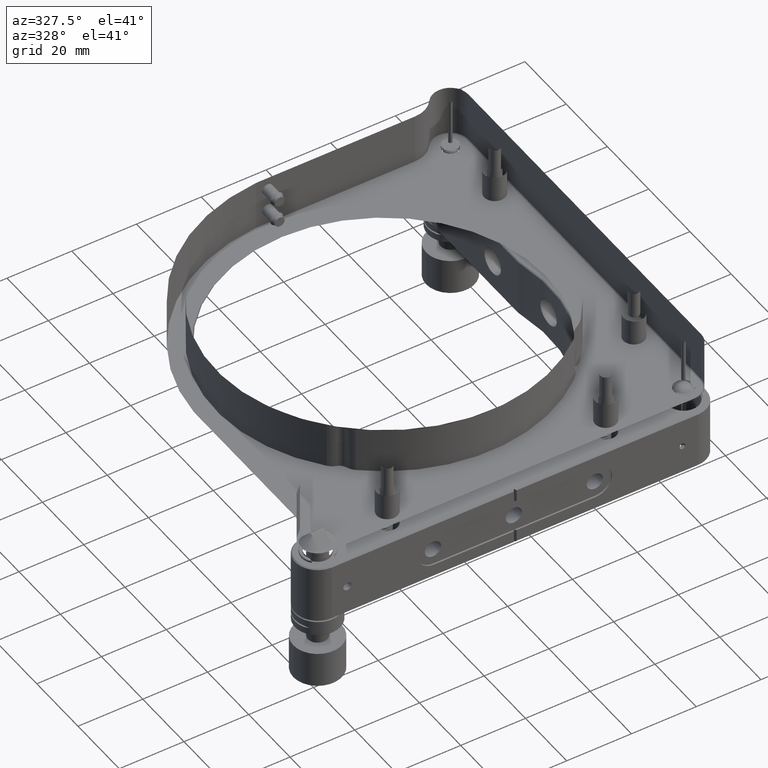
[diagram: clean part render]
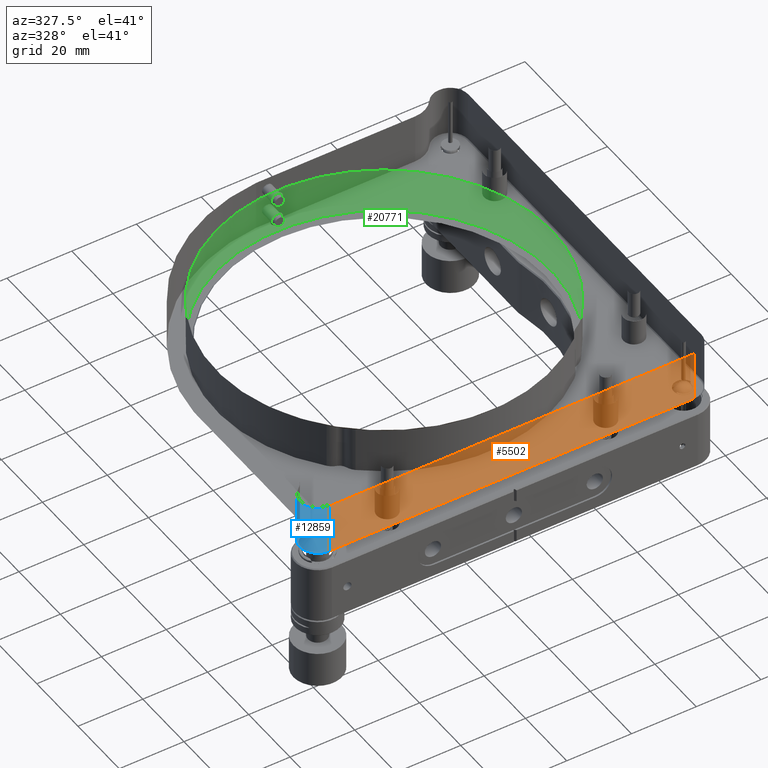
[diagram: same view with three faces highlighted in distinct colors, each labeled with its STEP entity id]
A machine part, auxiliary view with three faces highlighted in distinct colors.
Their STEP definitions:

[orange] entity #5502 — the highlighted planar face has unit normal (0, 1, 0).
#577 = EDGE_CURVE ( 'NONE', #12945, #19850, #19547, .T. ) ;
#2118 = ORIENTED_EDGE ( 'NONE', *, *, #8507, .T. ) ;
#2546 = EDGE_LOOP ( 'NONE', ( #12035, #4943, #2118, #8846 ) ) ;
#3534 = CARTESIAN_POINT ( 'NONE',  ( 56.50000000000004974, -61.99999999999996447, 28.99528137423851959 ) ) ;
#4715 = EDGE_CURVE ( 'NONE', #12945, #7419, #16541, .T. ) ;
#4943 = ORIENTED_EDGE ( 'NONE', *, *, #4715, .T. ) ;
#5502 = ADVANCED_FACE ( 'NONE', ( #20330 ), #6491, .T. ) ;
#5518 = VECTOR ( 'NONE', #19340, 1000.000000000000000 ) ;
#5928 = DIRECTION ( 'NONE',  ( 0.000000000000000000, -0.000000000000000000, 1.000000000000000000 ) ) ;
#6035 = CARTESIAN_POINT ( 'NONE',  ( -56.49999999999994316, -61.99999999999995737, 28.99528137423851959 ) ) ;
#6491 = PLANE ( 'NONE',  #20452 ) ;
#6598 = CARTESIAN_POINT ( 'NONE',  ( -56.49999999999995026, -61.99999999999995737, 28.74528137423853380 ) ) ;
#6663 = LINE ( 'NONE', #3534, #21969 ) ;
#7419 = VERTEX_POINT ( 'NONE', #6598 ) ;
#7514 = CARTESIAN_POINT ( 'NONE',  ( 56.50000000000004974, -61.99999999997451283, 28.74528137424293206 ) ) ;
#7955 = DIRECTION ( 'NONE',  ( -1.000000000000000000, 6.086749038515108114E-17, 0.000000000000000000 ) ) ;
#8507 = EDGE_CURVE ( 'NONE', #7419, #15035, #8747, .T. ) ;
#8747 = LINE ( 'NONE', #15576, #5518 ) ;
#8846 = ORIENTED_EDGE ( 'NONE', *, *, #12058, .T. ) ;
#11063 = CARTESIAN_POINT ( 'NONE',  ( -61.99999999999994316, -61.99999999999996447, 13.24528137423852314 ) ) ;
#11807 = DIRECTION ( 'NONE',  ( 0.000000000000000000, 0.000000000000000000, -1.000000000000000000 ) ) ;
#12035 = ORIENTED_EDGE ( 'NONE', *, *, #577, .F. ) ;
#12058 = EDGE_CURVE ( 'NONE', #15035, #19850, #6663, .T. ) ;
#12945 = VERTEX_POINT ( 'NONE', #20371 ) ;
#14009 = VECTOR ( 'NONE', #14422, 1000.000000000000000 ) ;
#14422 = DIRECTION ( 'NONE',  ( 1.000000000000000000, -3.043374519257553441E-17, -3.043374519257553441E-17 ) ) ;
#15035 = VERTEX_POINT ( 'NONE', #7514 ) ;
#15576 = CARTESIAN_POINT ( 'NONE',  ( -61.99999999999994316, -61.99999999999995737, 28.74528137423853380 ) ) ;
#16541 = LINE ( 'NONE', #6035, #19719 ) ;
#16884 = CARTESIAN_POINT ( 'NONE',  ( -61.99999999999994316, -61.99999999999995737, 28.99528137423851959 ) ) ;
#17144 = CARTESIAN_POINT ( 'NONE',  ( 56.50000000000007816, -62.00000000000599698, 13.24528137418556817 ) ) ;
#18340 = DIRECTION ( 'NONE',  ( 6.086749038515108114E-17, 1.000000000000000000, 0.000000000000000000 ) ) ;
#19340 = DIRECTION ( 'NONE',  ( 1.000000000000000000, -6.086749038515108114E-17, -0.000000000000000000 ) ) ;
#19547 = LINE ( 'NONE', #11063, #14009 ) ;
#19719 = VECTOR ( 'NONE', #5928, 1000.000000000000000 ) ;
#19850 = VERTEX_POINT ( 'NONE', #17144 ) ;
#20330 = FACE_OUTER_BOUND ( 'NONE', #2546, .T. ) ;
#20371 = CARTESIAN_POINT ( 'NONE',  ( -56.49999999999994316, -62.00000000000302691, 13.24528137422087326 ) ) ;
#20452 = AXIS2_PLACEMENT_3D ( 'NONE', #16884, #18340, #7955 ) ;
#21969 = VECTOR ( 'NONE', #11807, 1000.000000000000000 ) ;

[blue] entity #12859 — the highlighted cylindrical surface (edge-blend (fillet) strip) has radius 5.5 mm, axis along (0, 0, -1).
#497 = DIRECTION ( 'NONE',  ( -1.000000000000000000, 0.000000000000000000, 0.000000000000000000 ) ) ;
#1080 = CYLINDRICAL_SURFACE ( 'NONE', #3467, 5.499999999999998224 ) ;
#1513 = VERTEX_POINT ( 'NONE', #18717 ) ;
#1634 = ORIENTED_EDGE ( 'NONE', *, *, #21869, .F. ) ;
#2070 = DIRECTION ( 'NONE',  ( 0.000000000000000000, 0.000000000000000000, -1.000000000000000000 ) ) ;
#3467 = AXIS2_PLACEMENT_3D ( 'NONE', #21368, #19715, #6090 ) ;
#4136 = ORIENTED_EDGE ( 'NONE', *, *, #13081, .F. ) ;
#4715 = EDGE_CURVE ( 'NONE', #12945, #7419, #16541, .T. ) ;
#4745 = CARTESIAN_POINT ( 'NONE',  ( -56.49999999999993605, -56.49999999999996447, 13.24528137416791651 ) ) ;
#5354 = EDGE_CURVE ( 'NONE', #12945, #1513, #13692, .T. ) ;
#5928 = DIRECTION ( 'NONE',  ( 0.000000000000000000, -0.000000000000000000, 1.000000000000000000 ) ) ;
#6035 = CARTESIAN_POINT ( 'NONE',  ( -56.49999999999994316, -61.99999999999995737, 28.99528137423851959 ) ) ;
#6090 = DIRECTION ( 'NONE',  ( -1.000000000000000000, 0.000000000000000000, 0.000000000000000000 ) ) ;
#6193 = DIRECTION ( 'NONE',  ( -0.000000000000000000, -0.000000000000000000, -1.000000000000000000 ) ) ;
#6598 = CARTESIAN_POINT ( 'NONE',  ( -56.49999999999995026, -61.99999999999995737, 28.74528137423853380 ) ) ;
#7419 = VERTEX_POINT ( 'NONE', #6598 ) ;
#7881 = FACE_OUTER_BOUND ( 'NONE', #22013, .T. ) ;
#8612 = ORIENTED_EDGE ( 'NONE', *, *, #5354, .T. ) ;
#10004 = DIRECTION ( 'NONE',  ( 0.000000000000000000, 1.000000000000000000, 0.000000000000000000 ) ) ;
#10204 = VERTEX_POINT ( 'NONE', #12702 ) ;
#10955 = CIRCLE ( 'NONE', #20917, 5.499999999999998224 ) ;
#11435 = DIRECTION ( 'NONE',  ( 0.000000000000000000, 0.000000000000000000, -1.000000000000000000 ) ) ;
#12702 = CARTESIAN_POINT ( 'NONE',  ( -59.75925925925384519, -52.06973713184308394, 28.74528137425714291 ) ) ;
#12859 = ADVANCED_FACE ( 'NONE', ( #7881 ), #1080, .F. ) ;
#12945 = VERTEX_POINT ( 'NONE', #20371 ) ;
#13081 = EDGE_CURVE ( 'NONE', #7419, #10204, #10955, .T. ) ;
#13692 = CIRCLE ( 'NONE', #16171, 5.500000000012245316 ) ;
#14803 = LINE ( 'NONE', #16995, #18564 ) ;
#15801 = CARTESIAN_POINT ( 'NONE',  ( -56.49999999999993605, -56.49999999999996447, 28.74528137423853380 ) ) ;
#16171 = AXIS2_PLACEMENT_3D ( 'NONE', #4745, #6193, #10004 ) ;
#16541 = LINE ( 'NONE', #6035, #19719 ) ;
#16995 = CARTESIAN_POINT ( 'NONE',  ( -59.75925925925920268, -52.06973713184724772, 28.99528137423851959 ) ) ;
#17899 = ORIENTED_EDGE ( 'NONE', *, *, #4715, .F. ) ;
#18564 = VECTOR ( 'NONE', #11435, 1000.000000000000000 ) ;
#18717 = CARTESIAN_POINT ( 'NONE',  ( -59.75925925924449444, -52.06973713188550335, 13.24528137418900720 ) ) ;
#19715 = DIRECTION ( 'NONE',  ( 0.000000000000000000, 0.000000000000000000, -1.000000000000000000 ) ) ;
#19719 = VECTOR ( 'NONE', #5928, 1000.000000000000000 ) ;
#20371 = CARTESIAN_POINT ( 'NONE',  ( -56.49999999999994316, -62.00000000000302691, 13.24528137422087326 ) ) ;
#20917 = AXIS2_PLACEMENT_3D ( 'NONE', #15801, #2070, #497 ) ;
#21368 = CARTESIAN_POINT ( 'NONE',  ( -56.49999999999993605, -56.49999999999996447, 28.99528137423851959 ) ) ;
#21869 = EDGE_CURVE ( 'NONE', #10204, #1513, #14803, .T. ) ;
#22013 = EDGE_LOOP ( 'NONE', ( #17899, #8612, #1634, #4136 ) ) ;

[green] entity #20771 — the highlighted cylindrical surface (partial cylindrical patch) has radius 51.8 mm, axis along (0, 0, 1).
#135 = FACE_OUTER_BOUND ( 'NONE', #5286, .T. ) ;
#148 = CARTESIAN_POINT ( 'NONE',  ( 0.4270532416753768934, 51.79834690574876532, 26.59267950004793590 ) ) ;
#217 = DIRECTION ( 'NONE',  ( -0.000000000000000000, -0.000000000000000000, -1.000000000000000000 ) ) ;
#256 = CARTESIAN_POINT ( 'NONE',  ( -0.8285465665919958811, 51.79345025189974905, 26.42621132850410959 ) ) ;
#368 = CARTESIAN_POINT ( 'NONE',  ( 8.089503459457469958E-14, 51.80000000000002558, 23.34528137423853167 ) ) ;
#455 = DIRECTION ( 'NONE',  ( 0.000000000000000000, 0.000000000000000000, 1.000000000000000000 ) ) ;
#576 = CARTESIAN_POINT ( 'NONE',  ( 0.4323199734079827272, 51.79858171080597629, 23.38828480740045279 ) ) ;
#778 = DIRECTION ( 'NONE',  ( 1.000000000000000000, 0.000000000000000000, 0.000000000000000000 ) ) ;
#904 = CARTESIAN_POINT ( 'NONE',  ( 1.566212797684664038, 51.77633322670951088, 24.46503850735648911 ) ) ;
#1094 = CARTESIAN_POINT ( 'NONE',  ( -1.312660736464374978, 51.78339972070894248, 19.00075592220325049 ) ) ;
#1157 = VERTEX_POINT ( 'NONE', #12605 ) ;
#1206 = CARTESIAN_POINT ( 'NONE',  ( -1.483666877931220984, 51.77876434918251647, 18.72529002339280879 ) ) ;
#1321 = CARTESIAN_POINT ( 'NONE',  ( 0.7316316666765588783, 51.79492925647194568, 19.47815339891709030 ) ) ;
#1430 = CARTESIAN_POINT ( 'NONE',  ( 8.094924470319897480E-14, 51.80000000000001137, 16.34528137423852456 ) ) ;
#1598 = CARTESIAN_POINT ( 'NONE',  ( -1.597333614466559082, 51.77537028162564781, 25.42267164003677493 ) ) ;
#1821 = CARTESIAN_POINT ( 'NONE',  ( -1.566212750141531940, 51.77633322816650008, 25.52552438815226310 ) ) ;
#1863 = CARTESIAN_POINT ( 'NONE',  ( 1.007162742744400319, 51.79028481878594903, 16.68391828574290869 ) ) ;
#2043 = CARTESIAN_POINT ( 'NONE',  ( 0.2161863550557907576, 51.79965617742464445, 26.63458570945284976 ) ) ;
#2146 = CARTESIAN_POINT ( 'NONE',  ( 1.244514433334045211, 51.78510506429091720, 23.90645611148425331 ) ) ;
#2478 = B_SPLINE_CURVE_WITH_KNOTS ( 'NONE', 3,
 ( #1430, #8125, #15053, #19618, #4545, #13262, #14946, #11248, #18064, #11579, #13155, #11466, #21605, #21382, #12920, #16385, #6212, #1206, #2987, #1094, #6102, #19729, #2761, #18389, #11132, #9908, #3092, #21825, #6331, #19952, #4657, #1321, #20055, #18175, #7894, #8232, #6546, #14718, #8010, #13035, #11356, #4322, #2875, #9686, #14837, #9799, #16610, #17951, #1863, #8775, #13370, #13591, #15496, #8667 ),
 .UNSPECIFIED., .T., .F.,
 ( 4, 2, 2, 2, 2, 2, 2, 2, 2, 2, 2, 2, 2, 2, 2, 2, 2, 2, 2, 2, 2, 2, 2, 2, 2, 2, 4 ),
 ( 0.000000000000000000, 0.0003223695891700952823, 0.0006447391783401905645, 0.0009671087675102858468, 0.001289478356680381129, 0.001934217535020572344, 0.002578956713360763559, 0.002901326302530864588, 0.003223695891700965616, 0.003546065480871066645, 0.003868435070041167673, 0.004190804659211268268, 0.004513174248381369297, 0.005157913426721567017, 0.005480283015891665443, 0.005802652605061764737, 0.006125022194231863164, 0.006447391783401962458, 0.007092130961742159311, 0.007736870140082357031, 0.008059239729252451120, 0.008381609318422545210, 0.008703978907592639300, 0.009026348496762733389, 0.009348718085932827479, 0.009671087675102921569, 0.01031582685344310454 ),
 .UNSPECIFIED. ) ;
#2761 = CARTESIAN_POINT ( 'NONE',  ( -1.007162400624017629, 51.79028482551328949, 19.30664472807875853 ) ) ;
#2875 = CARTESIAN_POINT ( 'NONE',  ( 1.566212797684663371, 51.77633322670948957, 17.46503850735648200 ) ) ;
#2987 = CARTESIAN_POINT ( 'NONE',  ( -1.432031447298610205, 51.78023610198898297, 18.82192713247351179 ) ) ;
#3092 = CARTESIAN_POINT ( 'NONE',  ( -0.2180083631620857443, 51.80000000000007532, 19.64528137423851817 ) ) ;
#3259 = CARTESIAN_POINT ( 'NONE',  ( 0.5318308255261325890, 51.79736612562106757, 26.56096023986786747 ) ) ;
#3373 = CARTESIAN_POINT ( 'NONE',  ( -0.8263936647723697515, 51.79348527612400233, 23.56308115462836383 ) ) ;
#3488 = CARTESIAN_POINT ( 'NONE',  ( -1.090635142081415987, 51.78857439327549628, 26.23821002148700998 ) ) ;
#3586 = CYLINDRICAL_SURFACE ( 'NONE', #18911, 51.79999999999999005 ) ;
#3598 = CARTESIAN_POINT ( 'NONE',  ( -1.483666877931220984, 51.77876434918252357, 25.72529002339280524 ) ) ;
#3704 = CARTESIAN_POINT ( 'NONE',  ( -1.007162400624018295, 51.79028482551333212, 26.30664472807876919 ) ) ;
#3751 = LINE ( 'NONE', #21038, #9879 ) ;
#3922 = CARTESIAN_POINT ( 'NONE',  ( 1.597333644506853112, 51.77537028069403391, 24.56789122840461914 ) ) ;
#4322 = CARTESIAN_POINT ( 'NONE',  ( 1.597333644506852668, 51.77537028069402680, 17.56789122840462625 ) ) ;
#4545 = CARTESIAN_POINT ( 'NONE',  ( -0.5318302619160883982, 51.79736613149785285, 16.42960231472630994 ) ) ;
#4603 = VERTEX_POINT ( 'NONE', #19451 ) ;
#4657 = CARTESIAN_POINT ( 'NONE',  ( 0.5318308255261322559, 51.79736612562106046, 19.56096023986786392 ) ) ;
#5162 = CARTESIAN_POINT ( 'NONE',  ( -1.650072670451273593, 51.77371205725521719, 25.10176363823922330 ) ) ;
#5173 = AXIS2_PLACEMENT_3D ( 'NONE', #9258, #16077, #778 ) ;
#5286 = EDGE_LOOP ( 'NONE', ( #15995, #14391, #15091, #19961 ) ) ;
#5387 = CARTESIAN_POINT ( 'NONE',  ( -1.441879731126964659, 51.77999384854361864, 24.16482119754056157 ) ) ;
#5923 = CARTESIAN_POINT ( 'NONE',  ( 1.483666972781778615, 51.77876434644579717, 24.26527292265247482 ) ) ;
#6102 = CARTESIAN_POINT ( 'NONE',  ( -1.244514210433852019, 51.78510506971094429, 19.08410689530336057 ) ) ;
#6212 = CARTESIAN_POINT ( 'NONE',  ( -1.566212750141532606, 51.77633322816652139, 18.52552438815225599 ) ) ;
#6252 = VERTEX_POINT ( 'NONE', #12783 ) ;
#6331 = CARTESIAN_POINT ( 'NONE',  ( 0.2161863550557916458, 51.79965617742463735, 19.63458570945285686 ) ) ;
#6416 = DIRECTION ( 'NONE',  ( -0.000000000000000000, -0.000000000000000000, -1.000000000000000000 ) ) ;
#6546 = CARTESIAN_POINT ( 'NONE',  ( 1.441879848103171380, 51.77999384521309878, 18.82574133183396370 ) ) ;
#6835 = CARTESIAN_POINT ( 'NONE',  ( -1.606491322959578083, 51.77514814796286657, 24.56184522741693499 ) ) ;
#6952 = CARTESIAN_POINT ( 'NONE',  ( 0.7316316666765574350, 51.79492925647194568, 26.47815339891709741 ) ) ;
#6995 = CARTESIAN_POINT ( 'NONE',  ( 8.111674747780438969E-14, 51.80000000000002558, 23.34528137423852456 ) ) ;
#7169 = CARTESIAN_POINT ( 'NONE',  ( 1.318945980354397918, 51.78342937396011791, 26.00978228966589967 ) ) ;
#7843 = EDGE_CURVE ( 'NONE', #21870, #6252, #8027, .T. ) ;
#7894 = CARTESIAN_POINT ( 'NONE',  ( 1.090647808960368170, 51.78857288450382867, 19.23808868369323122 ) ) ;
#8010 = CARTESIAN_POINT ( 'NONE',  ( 1.649853518418210596, 51.77371904150917459, 18.21160636678854061 ) ) ;
#8027 = CIRCLE ( 'NONE', #5173, 51.79999999999999005 ) ;
#8125 = CARTESIAN_POINT ( 'NONE',  ( -0.1090042129200796406, 51.80000000000001137, 16.34528137423852101 ) ) ;
#8232 = CARTESIAN_POINT ( 'NONE',  ( 1.318945980354398806, 51.78342937396013212, 19.00978228966591033 ) ) ;
#8478 = CARTESIAN_POINT ( 'NONE',  ( 6.418476861114183725E-14, 3.361026734705063745E-14, 27.99528137423851248 ) ) ;
#8625 = CARTESIAN_POINT ( 'NONE',  ( -0.5318302619160887312, 51.79736613149785995, 23.42960231472630994 ) ) ;
#8667 = CARTESIAN_POINT ( 'NONE',  ( 8.094924470319897480E-14, 51.80000000000001137, 16.34528137423852456 ) ) ;
#8775 = CARTESIAN_POINT ( 'NONE',  ( 0.8285469947618419040, 51.79345024497607142, 16.56435167026551625 ) ) ;
#8797 = ORIENTED_EDGE ( 'NONE', *, *, #15805, .F. ) ;
#8839 = CARTESIAN_POINT ( 'NONE',  ( -0.4323193786120368420, 51.79858171606942818, 26.60227810829201900 ) ) ;
#8895 = EDGE_LOOP ( 'NONE', ( #8797 ) ) ;
#9258 = CARTESIAN_POINT ( 'NONE',  ( 6.418476861114183725E-14, 3.361026734705063745E-14, 13.99528137423852669 ) ) ;
#9677 = EDGE_CURVE ( 'NONE', #18460, #1157, #19816, .T. ) ;
#9686 = CARTESIAN_POINT ( 'NONE',  ( 1.483666972781779503, 51.77876434644580428, 17.26527292265247837 ) ) ;
#9799 = CARTESIAN_POINT ( 'NONE',  ( 1.312660922802074026, 51.78339971594868985, 16.98980707278033364 ) ) ;
#9879 = VECTOR ( 'NONE', #20721, 1000.000000000000000 ) ;
#9908 = CARTESIAN_POINT ( 'NONE',  ( -0.4323193786120372306, 51.79858171606944239, 19.60227810829202255 ) ) ;
#10081 = CARTESIAN_POINT ( 'NONE',  ( 1.090647808960367726, 51.78857288450380736, 26.23808868369322056 ) ) ;
#10192 = CARTESIAN_POINT ( 'NONE',  ( -1.318945797796663433, 51.78342937884509212, 23.98078020774538288 ) ) ;
#10630 = CARTESIAN_POINT ( 'NONE',  ( 0.2180084258403997277, 51.80000000000001847, 23.34528137423854233 ) ) ;
#10843 = CARTESIAN_POINT ( 'NONE',  ( 1.650072670430444033, 51.77371205725589931, 24.88879914117398684 ) ) ;
#10953 = EDGE_LOOP ( 'NONE', ( #12750 ) ) ;
#10954 = CARTESIAN_POINT ( 'NONE',  ( 1.007162742744399653, 51.79028481878591350, 23.68391828574291580 ) ) ;
#11132 = CARTESIAN_POINT ( 'NONE',  ( -0.7321764232669889516, 51.79492165884195742, 19.47788965774003955 ) ) ;
#11226 = CARTESIAN_POINT ( 'NONE',  ( -39.26746954750443308, -33.78321825012833557, -133.5172436876140978 ) ) ;
#11248 = CARTESIAN_POINT ( 'NONE',  ( -1.005737152545551849, 51.79031315137260094, 16.68279642643270222 ) ) ;
#11356 = CARTESIAN_POINT ( 'NONE',  ( 1.639383279428564988, 51.77405590581036421, 17.77950470321147591 ) ) ;
#11466 = CARTESIAN_POINT ( 'NONE',  ( -1.606491322959578083, 51.77514814796286657, 17.56184522741693144 ) ) ;
#11579 = CARTESIAN_POINT ( 'NONE',  ( -1.318945797796662323, 51.78342937884508501, 16.98078020774537578 ) ) ;
#12092 = CARTESIAN_POINT ( 'NONE',  ( 1.649853518418212373, 51.77371904150925275, 25.21160636678855838 ) ) ;
#12196 = CARTESIAN_POINT ( 'NONE',  ( -1.639383273200234470, 51.77405590601239993, 25.21105810782020740 ) ) ;
#12233 = EDGE_CURVE ( 'NONE', #1157, #21870, #3751, .T. ) ;
#12300 = CARTESIAN_POINT ( 'NONE',  ( -0.2180083631620979567, 51.80000000000003979, 26.64528137423851462 ) ) ;
#12371 = DIRECTION ( 'NONE',  ( 1.000000000000000000, 0.000000000000000000, 0.000000000000000000 ) ) ;
#12605 = CARTESIAN_POINT ( 'NONE',  ( 39.26746954750453966, -33.78321825012834978, 27.99528137423851604 ) ) ;
#12750 = ORIENTED_EDGE ( 'NONE', *, *, #17644, .F. ) ;
#12783 = CARTESIAN_POINT ( 'NONE',  ( -39.26746954750443308, -33.78321825012833557, 13.99528137423852669 ) ) ;
#12920 = CARTESIAN_POINT ( 'NONE',  ( -1.639383273200234692, 51.77405590601243546, 18.21105810782021450 ) ) ;
#13035 = CARTESIAN_POINT ( 'NONE',  ( 1.650072670430444699, 51.77371205725588510, 17.88879914117399039 ) ) ;
#13066 = VECTOR ( 'NONE', #6416, 1000.000000000000000 ) ;
#13155 = CARTESIAN_POINT ( 'NONE',  ( -1.441879731126964437, 51.77999384854359022, 17.16482119754055446 ) ) ;
#13262 = CARTESIAN_POINT ( 'NONE',  ( -0.7316311963046294720, 51.79492926320609314, 16.51240911491250074 ) ) ;
#13370 = CARTESIAN_POINT ( 'NONE',  ( 0.7321769017585567640, 51.79492165200316833, 16.51267332898834184 ) ) ;
#13591 = CARTESIAN_POINT ( 'NONE',  ( 0.4323199734079832268, 51.79858171080597629, 16.38828480740044569 ) ) ;
#13642 = CARTESIAN_POINT ( 'NONE',  ( 6.418476861114183725E-14, 3.361026734705063745E-14, -133.5172436876140978 ) ) ;
#13655 = CARTESIAN_POINT ( 'NONE',  ( -1.649853518376055206, 51.77371904151055304, 24.77895631981650126 ) ) ;
#13770 = CARTESIAN_POINT ( 'NONE',  ( 1.005737498701338772, 51.79031314458023871, 26.30776605445067773 ) ) ;
#14100 = EDGE_CURVE ( 'NONE', #18460, #6252, #21690, .T. ) ;
#14308 = CARTESIAN_POINT ( 'NONE',  ( 0.8285469947618402387, 51.79345024497606431, 23.56435167026550914 ) ) ;
#14391 = ORIENTED_EDGE ( 'NONE', *, *, #12233, .T. ) ;
#14718 = CARTESIAN_POINT ( 'NONE',  ( 1.606491347962764271, 51.77514814711393143, 18.42871739772555628 ) ) ;
#14837 = CARTESIAN_POINT ( 'NONE',  ( 1.432031569836651475, 51.78023609856326459, 17.16863583222209755 ) ) ;
#14946 = CARTESIAN_POINT ( 'NONE',  ( -0.8263936647723699735, 51.79348527612398101, 16.56308115462837449 ) ) ;
#15053 = CARTESIAN_POINT ( 'NONE',  ( -0.2161856810756386527, 51.79965618031364727, 16.35597694819131220 ) ) ;
#15091 = ORIENTED_EDGE ( 'NONE', *, *, #7843, .T. ) ;
#15338 = CARTESIAN_POINT ( 'NONE',  ( -1.005737152545551627, 51.79031315137259384, 23.68279642643268801 ) ) ;
#15450 = CARTESIAN_POINT ( 'NONE',  ( 0.1090041815811500642, 51.80000000000003268, 26.64528137423850751 ) ) ;
#15496 = CARTESIAN_POINT ( 'NONE',  ( 0.2180084258403998387, 51.80000000000000426, 16.34528137423853167 ) ) ;
#15497 = VERTEX_POINT ( 'NONE', #6995 ) ;
#15562 = CARTESIAN_POINT ( 'NONE',  ( -1.244514210433852686, 51.78510506971094429, 26.08410689530336413 ) ) ;
#15567 = AXIS2_PLACEMENT_3D ( 'NONE', #8478, #217, #12371 ) ;
#15667 = CARTESIAN_POINT ( 'NONE',  ( 0.8263940920445065341, 51.79348526923642027, 26.42748134516420677 ) ) ;
#15760 = DIRECTION ( 'NONE',  ( 1.000000000000000000, 0.000000000000000000, 0.000000000000000000 ) ) ;
#15805 = EDGE_CURVE ( 'NONE', #15497, #15497, #18922, .T. ) ;
#15986 = CARTESIAN_POINT ( 'NONE',  ( 1.312660922802074026, 51.78339971594868274, 23.98980707278032654 ) ) ;
#15995 = ORIENTED_EDGE ( 'NONE', *, *, #9677, .T. ) ;
#16077 = DIRECTION ( 'NONE',  ( 0.000000000000000000, 0.000000000000000000, 1.000000000000000000 ) ) ;
#16385 = CARTESIAN_POINT ( 'NONE',  ( -1.597333614466558194, 51.77537028162565491, 18.42267164003678204 ) ) ;
#16610 = CARTESIAN_POINT ( 'NONE',  ( 1.244514433334048098, 51.78510506429089588, 16.90645611148424621 ) ) ;
#16891 = CARTESIAN_POINT ( 'NONE',  ( 1.441879848103171602, 51.77999384521310589, 25.82574133183397080 ) ) ;
#17103 = FACE_BOUND ( 'NONE', #10953, .T. ) ;
#17117 = CARTESIAN_POINT ( 'NONE',  ( -0.7321764232669879524, 51.79492165884195742, 26.47788965774004666 ) ) ;
#17224 = CARTESIAN_POINT ( 'NONE',  ( -0.2161856810756388747, 51.79965618031365437, 23.35597694819132286 ) ) ;
#17535 = FACE_BOUND ( 'NONE', #8895, .T. ) ;
#17546 = CARTESIAN_POINT ( 'NONE',  ( 1.432031569836652585, 51.78023609856327880, 24.16863583222210465 ) ) ;
#17644 = EDGE_CURVE ( 'NONE', #4603, #4603, #2478, .T. ) ;
#17768 = CARTESIAN_POINT ( 'NONE',  ( 8.089503459457469958E-14, 51.80000000000002558, 23.34528137423853167 ) ) ;
#17951 = CARTESIAN_POINT ( 'NONE',  ( 1.090635450070636780, 51.78857438672620361, 16.75235300034165675 ) ) ;
#18064 = CARTESIAN_POINT ( 'NONE',  ( -1.090647506419987867, 51.78857289093399885, 16.75247379648359214 ) ) ;
#18175 = CARTESIAN_POINT ( 'NONE',  ( 1.005737498701340993, 51.79031314458022450, 19.30776605445066707 ) ) ;
#18389 = CARTESIAN_POINT ( 'NONE',  ( -0.8285465665919956590, 51.79345025189974194, 19.42621132850410248 ) ) ;
#18460 = VERTEX_POINT ( 'NONE', #19837 ) ;
#18791 = CARTESIAN_POINT ( 'NONE',  ( -1.312660736464375866, 51.78339972070894959, 26.00075592220325049 ) ) ;
#18911 = AXIS2_PLACEMENT_3D ( 'NONE', #13642, #455, #15760 ) ;
#18922 = B_SPLINE_CURVE_WITH_KNOTS ( 'NONE', 3,
 ( #368, #20451, #17224, #20336, #8625, #20779, #3373, #15338, #20674, #10192, #5387, #6835, #13655, #5162, #12196, #1598, #1821, #3598, #19008, #18791, #15562, #3488, #3704, #256, #17117, #8839, #12300, #15450, #2043, #148, #3259, #6952, #15667, #13770, #10081, #7169, #16891, #20567, #12092, #10843, #21309, #3922, #904, #5923, #17546, #15986, #2146, #20989, #10954, #14308, #21201, #576, #10630, #17768 ),
 .UNSPECIFIED., .T., .F.,
 ( 4, 2, 2, 2, 2, 2, 2, 2, 2, 2, 2, 2, 2, 2, 2, 2, 2, 2, 2, 2, 2, 2, 2, 2, 2, 2, 4 ),
 ( 0.000000000000000000, 0.0003223695891700954991, 0.0006447391783401909982, 0.0009671087675102864973, 0.001289478356680381996, 0.001934217535020573428, 0.002578956713360765294, 0.002901326302530866322, 0.003223695891700967785, 0.003546065480871068813, 0.003868435070041169842, 0.004190804659211271738, 0.004513174248381372766, 0.005157913426721570486, 0.005480283015891669780, 0.005802652605061768207, 0.006125022194231867501, 0.006447391783401966794, 0.007092130961742164515, 0.007736870140082361368, 0.008059239729252454590, 0.008381609318422548680, 0.008703978907592642769, 0.009026348496762735124, 0.009348718085932829214, 0.009671087675102921569, 0.01031582685344310454 ),
 .UNSPECIFIED. ) ;
#19008 = CARTESIAN_POINT ( 'NONE',  ( -1.432031447298610205, 51.78023610198899718, 25.82192713247351179 ) ) ;
#19451 = CARTESIAN_POINT ( 'NONE',  ( 8.111674747780438969E-14, 51.80000000000002558, 16.34528137423852456 ) ) ;
#19618 = CARTESIAN_POINT ( 'NONE',  ( -0.4270526425312790031, 51.79834691076459308, 16.39788308625047719 ) ) ;
#19729 = CARTESIAN_POINT ( 'NONE',  ( -1.090635142081416653, 51.78857439327550338, 19.23821002148702064 ) ) ;
#19816 = CIRCLE ( 'NONE', #15567, 51.79999999999999005 ) ;
#19837 = CARTESIAN_POINT ( 'NONE',  ( -39.26746954750443308, -33.78321825012833557, 27.99528137423851959 ) ) ;
#19952 = CARTESIAN_POINT ( 'NONE',  ( 0.4270532416753768379, 51.79834690574877243, 19.59267950004793946 ) ) ;
#19961 = ORIENTED_EDGE ( 'NONE', *, *, #14100, .F. ) ;
#20055 = CARTESIAN_POINT ( 'NONE',  ( 0.8263940920445094207, 51.79348526923640605, 19.42748134516420322 ) ) ;
#20336 = CARTESIAN_POINT ( 'NONE',  ( -0.4270526425312791696, 51.79834691076460729, 23.39788308625048074 ) ) ;
#20451 = CARTESIAN_POINT ( 'NONE',  ( -0.1090042129200796822, 51.80000000000003979, 23.34528137423852812 ) ) ;
#20567 = CARTESIAN_POINT ( 'NONE',  ( 1.606491347962764049, 51.77514814711393143, 25.42871739772556694 ) ) ;
#20674 = CARTESIAN_POINT ( 'NONE',  ( -1.090647506419987867, 51.78857289093399885, 23.75247379648359569 ) ) ;
#20721 = DIRECTION ( 'NONE',  ( -0.000000000000000000, -0.000000000000000000, -1.000000000000000000 ) ) ;
#20771 = ADVANCED_FACE ( 'NONE', ( #17535, #17103, #135 ), #3586, .T. ) ;
#20779 = CARTESIAN_POINT ( 'NONE',  ( -0.7316311963046298050, 51.79492926320611446, 23.51240911491250785 ) ) ;
#20989 = CARTESIAN_POINT ( 'NONE',  ( 1.090635450070633450, 51.78857438672621072, 23.75235300034166386 ) ) ;
#21038 = CARTESIAN_POINT ( 'NONE',  ( 39.26746954750453966, -33.78321825012834978, -133.5172436876140978 ) ) ;
#21201 = CARTESIAN_POINT ( 'NONE',  ( 0.7321769017585563200, 51.79492165200317544, 23.51267332898834894 ) ) ;
#21309 = CARTESIAN_POINT ( 'NONE',  ( 1.639383279428565654, 51.77405590581040684, 24.77950470321148302 ) ) ;
#21382 = CARTESIAN_POINT ( 'NONE',  ( -1.650072670451273371, 51.77371205725522429, 18.10176363823922330 ) ) ;
#21458 = CARTESIAN_POINT ( 'NONE',  ( 39.26746954750453966, -33.78321825012834978, 13.99528137423852669 ) ) ;
#21605 = CARTESIAN_POINT ( 'NONE',  ( -1.649853518376054540, 51.77371904151053172, 17.77895631981646574 ) ) ;
#21690 = LINE ( 'NONE', #11226, #13066 ) ;
#21825 = CARTESIAN_POINT ( 'NONE',  ( 0.1090041815811636228, 51.80000000000002558, 19.64528137423850751 ) ) ;
#21870 = VERTEX_POINT ( 'NONE', #21458 ) ;